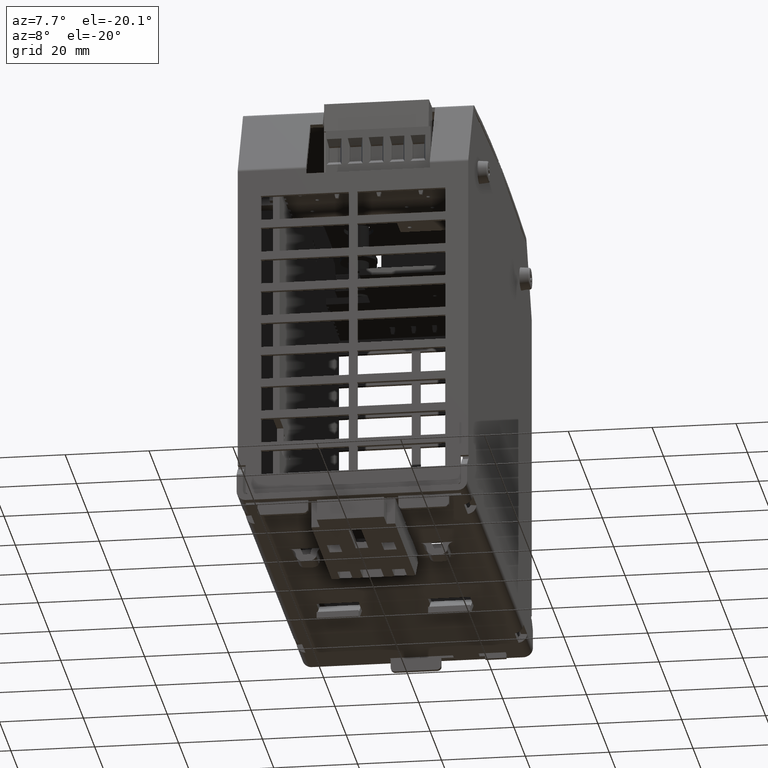
[diagram: clean part render]
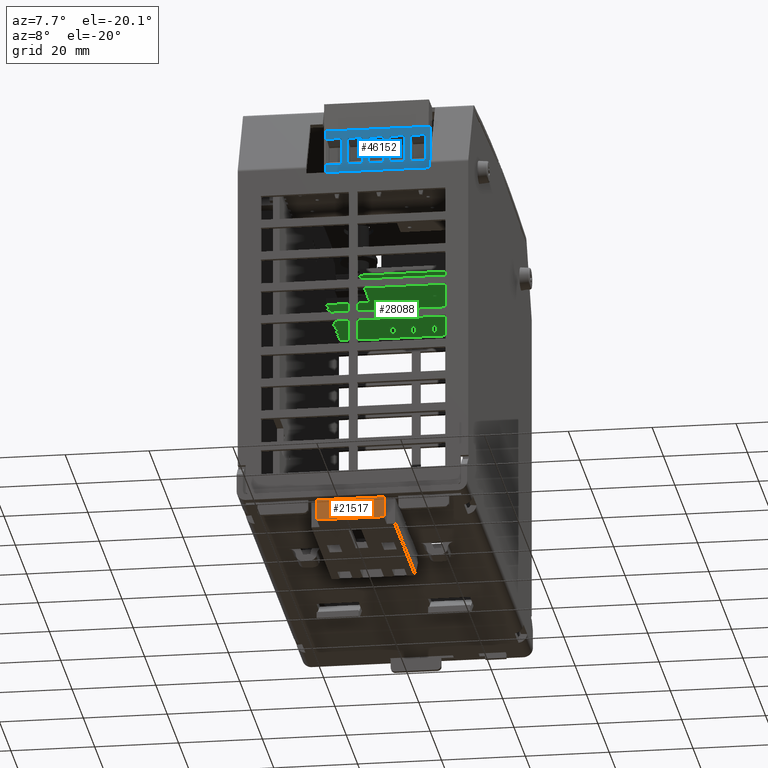
[diagram: same view with three faces highlighted in distinct colors, each labeled with its STEP entity id]
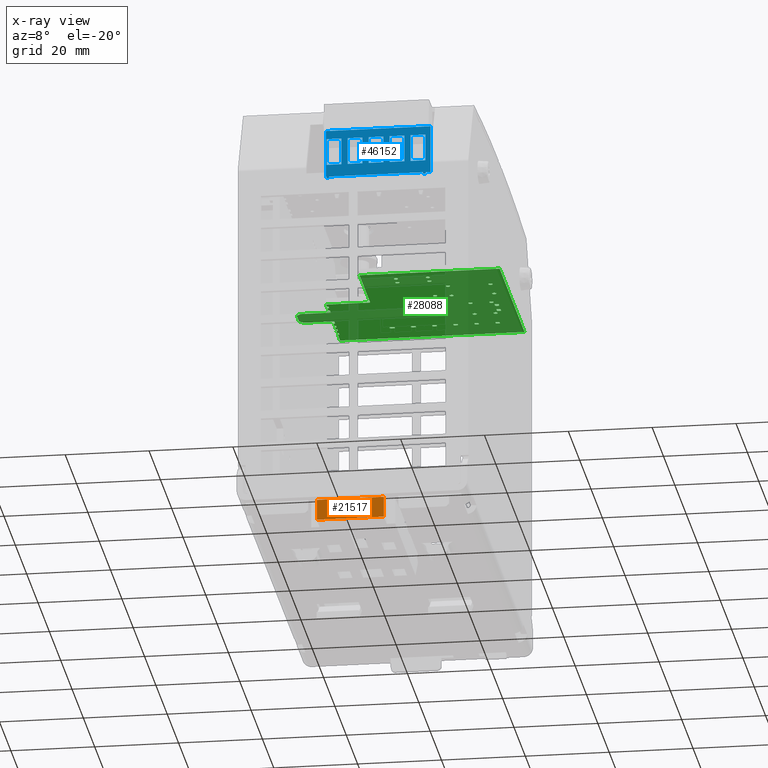
[diagram: x-ray of the same camera — body ghosted, the three highlighted faces saturated]
A machine part, auxiliary view with three faces highlighted in distinct colors.
The next image is the same camera in x-ray (body ghosted, the three faces saturated) — at least one of them is partly hidden behind the body in this view.
Their STEP definitions:

[orange] entity #21517 — the highlighted planar face has unit normal (0, -1, 0).
#21376=CARTESIAN_POINT('',(-0.236220472440945,-2.387795275590551,-0.070866141732281));
#21377=VERTEX_POINT('',#21376);
#21384=CARTESIAN_POINT('',(0.236220472440943,-2.387795275590551,-0.070866141732281));
#21385=VERTEX_POINT('',#21384);
#21386=CARTESIAN_POINT('',(0.236220472440943,-2.387795275590551,-0.070866141732281));
#21387=DIRECTION('',(-1.0,0.0,0.0));
#21388=VECTOR('',#21387,0.472440944881888);
#21389=LINE('',#21386,#21388);
#21390=EDGE_CURVE('',#21385,#21377,#21389,.T.);
#21430=CARTESIAN_POINT('',(-0.314960629921261,-2.387795275590551,-0.070866141732281));
#21431=VERTEX_POINT('',#21430);
#21438=CARTESIAN_POINT('',(-0.236220472440945,-2.387795275590551,-0.070866141732281));
#21439=DIRECTION('',(-1.0,0.0,0.0));
#21440=VECTOR('',#21439,0.078740157480316);
#21441=LINE('',#21438,#21440);
#21442=EDGE_CURVE('',#21377,#21431,#21441,.T.);
#21460=CARTESIAN_POINT('',(0.314960629921259,-2.387795275590551,-0.070866141732281));
#21461=VERTEX_POINT('',#21460);
#21462=CARTESIAN_POINT('',(0.314960629921259,-2.387795275590551,-0.070866141732281));
#21463=DIRECTION('',(-1.0,0.0,0.0));
#21464=VECTOR('',#21463,0.078740157480316);
#21465=LINE('',#21462,#21464);
#21466=EDGE_CURVE('',#21461,#21385,#21465,.T.);
#21485=CARTESIAN_POINT('',(-0.393700787401576,-2.387795275590551,-0.011811023622045));
#21486=DIRECTION('',(0.0,-1.0,0.0));
#21487=DIRECTION('',(0.0,0.0,1.0));
#21488=AXIS2_PLACEMENT_3D('',#21485,#21486,#21487);
#21489=PLANE('',#21488);
#21490=ORIENTED_EDGE('',*,*,#21466,.T.);
#21491=ORIENTED_EDGE('',*,*,#21390,.T.);
#21492=ORIENTED_EDGE('',*,*,#21442,.T.);
#21493=CARTESIAN_POINT('',(-0.314960629921261,-2.387795275590551,-0.267716535433069));
#21494=VERTEX_POINT('',#21493);
#21495=CARTESIAN_POINT('',(-0.314960629921261,-2.387795275590551,-0.070866141732281));
#21496=DIRECTION('',(0.0,0.0,-1.0));
#21497=VECTOR('',#21496,0.196850393700787);
#21498=LINE('',#21495,#21497);
#21499=EDGE_CURVE('',#21431,#21494,#21498,.T.);
#21500=ORIENTED_EDGE('',*,*,#21499,.T.);
#21501=CARTESIAN_POINT('',(0.314960629921259,-2.387795275590551,-0.267716535433069));
#21502=VERTEX_POINT('',#21501);
#21503=CARTESIAN_POINT('',(-0.314960629921261,-2.387795275590551,-0.267716535433069));
#21504=DIRECTION('',(1.0,0.0,0.0));
#21505=VECTOR('',#21504,0.62992125984252);
#21506=LINE('',#21503,#21505);
#21507=EDGE_CURVE('',#21494,#21502,#21506,.T.);
#21508=ORIENTED_EDGE('',*,*,#21507,.T.);
#21509=CARTESIAN_POINT('',(0.314960629921259,-2.387795275590551,-0.267716535433069));
#21510=DIRECTION('',(0.0,0.0,1.0));
#21511=VECTOR('',#21510,0.196850393700787);
#21512=LINE('',#21509,#21511);
#21513=EDGE_CURVE('',#21502,#21461,#21512,.T.);
#21514=ORIENTED_EDGE('',*,*,#21513,.T.);
#21515=EDGE_LOOP('',(#21490,#21491,#21492,#21500,#21508,#21514));
#21516=FACE_OUTER_BOUND('',#21515,.T.);
#21517=ADVANCED_FACE('',(#21516),#21489,.T.);

[blue] entity #46152 — the highlighted planar face has unit normal (0, -1, 0).
#44432=CARTESIAN_POINT('',(-0.275901574803085,-2.058094488188977,3.701204724409452));
#44433=VERTEX_POINT('',#44432);
#44440=CARTESIAN_POINT('',(0.708350393700853,-2.058094488188977,3.701204724409452));
#44441=VERTEX_POINT('',#44440);
#44442=CARTESIAN_POINT('',(-0.275901574803085,-2.058094488188977,3.701204724409452));
#44443=DIRECTION('',(1.0,0.0,0.0));
#44444=VECTOR('',#44443,0.984251968503937);
#44445=LINE('',#44442,#44444);
#44446=EDGE_CURVE('',#44433,#44441,#44445,.T.);
#44711=CARTESIAN_POINT('',(-0.269996062992061,-2.058094488188977,3.24844881889764));
#44712=VERTEX_POINT('',#44711);
#44719=CARTESIAN_POINT('',(-0.275901574803085,-2.058094488188977,3.24844881889764));
#44720=VERTEX_POINT('',#44719);
#44721=CARTESIAN_POINT('',(-0.269996062992061,-2.058094488188977,3.24844881889764));
#44722=DIRECTION('',(-1.0,0.0,0.0));
#44723=VECTOR('',#44722,0.005905511811024);
#44724=LINE('',#44721,#44723);
#44725=EDGE_CURVE('',#44712,#44720,#44724,.T.);
#44756=CARTESIAN_POINT('',(0.637484251968569,-2.058094488188977,3.24844881889764));
#44757=VERTEX_POINT('',#44756);
#44766=CARTESIAN_POINT('',(-0.244405511810959,-2.058094488188977,3.24844881889764));
#44767=VERTEX_POINT('',#44766);
#44768=CARTESIAN_POINT('',(-0.244405511810959,-2.058094488188977,3.24844881889764));
#44769=DIRECTION('',(1.0,0.0,0.0));
#44770=VECTOR('',#44769,0.881889763779528);
#44771=LINE('',#44768,#44770);
#44772=EDGE_CURVE('',#44767,#44757,#44771,.T.);
#44846=CARTESIAN_POINT('',(0.708350393700853,-2.058094488188977,3.24844881889764));
#44847=VERTEX_POINT('',#44846);
#44854=CARTESIAN_POINT('',(0.663074803149672,-2.058094488188977,3.24844881889764));
#44855=VERTEX_POINT('',#44854);
#44856=CARTESIAN_POINT('',(0.663074803149672,-2.058094488188977,3.24844881889764));
#44857=DIRECTION('',(1.0,0.0,0.0));
#44858=VECTOR('',#44857,0.045275590551181);
#44859=LINE('',#44856,#44858);
#44860=EDGE_CURVE('',#44855,#44847,#44859,.T.);
#45909=CARTESIAN_POINT('',(0.708350393700853,-2.058094488188977,3.701204724409452));
#45910=DIRECTION('',(0.0,0.0,-1.0));
#45911=VECTOR('',#45910,0.452755905511811);
#45912=LINE('',#45909,#45911);
#45913=EDGE_CURVE('',#44441,#44847,#45912,.T.);
#45920=CARTESIAN_POINT('',(-0.295586614173163,-2.058094488188977,3.24844881889764));
#45921=DIRECTION('',(0.0,-1.0,0.0));
#45922=DIRECTION('',(1.0,0.0,0.0));
#45923=AXIS2_PLACEMENT_3D('',#45920,#45921,#45922);
#45924=PLANE('',#45923);
#45925=ORIENTED_EDGE('',*,*,#44860,.T.);
#45926=ORIENTED_EDGE('',*,*,#45913,.F.);
#45927=ORIENTED_EDGE('',*,*,#44446,.F.);
#45928=CARTESIAN_POINT('',(-0.275901574803085,-2.058094488188977,3.24844881889764));
#45929=DIRECTION('',(0.0,0.0,1.0));
#45930=VECTOR('',#45929,0.452755905511811);
#45931=LINE('',#45928,#45930);
#45932=EDGE_CURVE('',#44720,#44433,#45931,.T.);
#45933=ORIENTED_EDGE('',*,*,#45932,.F.);
#45934=ORIENTED_EDGE('',*,*,#44725,.F.);
#45935=CARTESIAN_POINT('',(-0.269996062992061,-2.058094488188977,3.232700787401578));
#45936=VERTEX_POINT('',#45935);
#45937=CARTESIAN_POINT('',(-0.269996062992061,-2.058094488188977,3.232700787401578));
#45938=DIRECTION('',(0.0,0.0,1.0));
#45939=VECTOR('',#45938,0.015748031496063);
#45940=LINE('',#45937,#45939);
#45941=EDGE_CURVE('',#45936,#44712,#45940,.T.);
#45942=ORIENTED_EDGE('',*,*,#45941,.F.);
#45943=CARTESIAN_POINT('',(-0.244405511810959,-2.058094488188977,3.232700787401578));
#45944=VERTEX_POINT('',#45943);
#45945=CARTESIAN_POINT('',(-0.244405511810959,-2.058094488188977,3.232700787401578));
#45946=DIRECTION('',(-1.0,0.0,0.0));
#45947=VECTOR('',#45946,0.025590551181102);
#45948=LINE('',#45945,#45947);
#45949=EDGE_CURVE('',#45944,#45936,#45948,.T.);
#45950=ORIENTED_EDGE('',*,*,#45949,.F.);
#45951=CARTESIAN_POINT('',(-0.244405511810959,-2.058094488188977,3.232700787401578));
#45952=DIRECTION('',(0.0,0.0,1.0));
#45953=VECTOR('',#45952,0.015748031496063);
#45954=LINE('',#45951,#45953);
#45955=EDGE_CURVE('',#45944,#44767,#45954,.T.);
#45956=ORIENTED_EDGE('',*,*,#45955,.T.);
#45957=ORIENTED_EDGE('',*,*,#44772,.T.);
#45958=CARTESIAN_POINT('',(0.637484251968569,-2.058094488188977,3.232700787401578));
#45959=VERTEX_POINT('',#45958);
#45960=CARTESIAN_POINT('',(0.637484251968569,-2.058094488188977,3.232700787401578));
#45961=DIRECTION('',(0.0,0.0,1.0));
#45962=VECTOR('',#45961,0.015748031496063);
#45963=LINE('',#45960,#45962);
#45964=EDGE_CURVE('',#45959,#44757,#45963,.T.);
#45965=ORIENTED_EDGE('',*,*,#45964,.F.);
#45966=CARTESIAN_POINT('',(0.663074803149672,-2.058094488188977,3.232700787401578));
#45967=VERTEX_POINT('',#45966);
#45968=CARTESIAN_POINT('',(0.663074803149672,-2.058094488188977,3.232700787401578));
#45969=DIRECTION('',(-1.0,0.0,0.0));
#45970=VECTOR('',#45969,0.025590551181102);
#45971=LINE('',#45968,#45970);
#45972=EDGE_CURVE('',#45967,#45959,#45971,.T.);
#45973=ORIENTED_EDGE('',*,*,#45972,.F.);
#45974=CARTESIAN_POINT('',(0.663074803149672,-2.058094488188977,3.232700787401578));
#45975=DIRECTION('',(0.0,0.0,1.0));
#45976=VECTOR('',#45975,0.015748031496063);
#45977=LINE('',#45974,#45976);
#45978=EDGE_CURVE('',#45967,#44855,#45977,.T.);
#45979=ORIENTED_EDGE('',*,*,#45978,.T.);
#45980=EDGE_LOOP('',(#45925,#45926,#45927,#45933,#45934,#45942,#45950,#45956,#45957,#45965,#45973,#45979));
#45981=FACE_OUTER_BOUND('',#45980,.T.);
#45982=CARTESIAN_POINT('',(-0.266059055118045,-2.058094488188977,3.620844319953231));
#45983=VERTEX_POINT('',#45982);
#45984=CARTESIAN_POINT('',(-0.266059055118045,-2.058094488188977,3.366559055118113));
#45985=VERTEX_POINT('',#45984);
#45986=CARTESIAN_POINT('',(-0.266059055118045,-2.058094488188977,3.620844319953231));
#45987=DIRECTION('',(0.0,0.0,-1.0));
#45988=VECTOR('',#45987,0.254285264835118);
#45989=LINE('',#45986,#45988);
#45990=EDGE_CURVE('',#45983,#45985,#45989,.T.);
#45991=ORIENTED_EDGE('',*,*,#45990,.F.);
#45992=CARTESIAN_POINT('',(-0.128263779527494,-2.058094488188977,3.620844319953231));
#45993=VERTEX_POINT('',#45992);
#45994=CARTESIAN_POINT('',(-0.128263779527494,-2.058094488188977,3.620844319953231));
#45995=DIRECTION('',(-1.0,0.0,0.0));
#45996=VECTOR('',#45995,0.137795275590551);
#45997=LINE('',#45994,#45996);
#45998=EDGE_CURVE('',#45993,#45983,#45997,.T.);
#45999=ORIENTED_EDGE('',*,*,#45998,.F.);
#46000=CARTESIAN_POINT('',(-0.128263779527494,-2.058094488188977,3.366559055118113));
#46001=VERTEX_POINT('',#46000);
#46002=CARTESIAN_POINT('',(-0.128263779527494,-2.058094488188977,3.366559055118113));
#46003=DIRECTION('',(0.0,0.0,1.0));
#46004=VECTOR('',#46003,0.254285264835118);
#46005=LINE('',#46002,#46004);
#46006=EDGE_CURVE('',#46001,#45993,#46005,.T.);
#46007=ORIENTED_EDGE('',*,*,#46006,.F.);
#46008=CARTESIAN_POINT('',(-0.266059055118045,-2.058094488188977,3.366559055118113));
#46009=DIRECTION('',(1.0,0.0,0.0));
#46010=VECTOR('',#46009,0.137795275590551);
#46011=LINE('',#46008,#46010);
#46012=EDGE_CURVE('',#45985,#46001,#46011,.T.);
#46013=ORIENTED_EDGE('',*,*,#46012,.F.);
#46014=EDGE_LOOP('',(#45991,#45999,#46007,#46013));
#46015=FACE_BOUND('',#46014,.T.);
#46016=CARTESIAN_POINT('',(-0.069208661417258,-2.058094488188977,3.620844319953231));
#46017=VERTEX_POINT('',#46016);
#46018=CARTESIAN_POINT('',(-0.069208661417258,-2.058094488188977,3.366559055118113));
#46019=VERTEX_POINT('',#46018);
#46020=CARTESIAN_POINT('',(-0.069208661417258,-2.058094488188977,3.620844319953231));
#46021=DIRECTION('',(0.0,0.0,-1.0));
#46022=VECTOR('',#46021,0.254285264835118);
#46023=LINE('',#46020,#46022);
#46024=EDGE_CURVE('',#46017,#46019,#46023,.T.);
#46025=ORIENTED_EDGE('',*,*,#46024,.F.);
#46026=CARTESIAN_POINT('',(0.068586614173293,-2.058094488188977,3.620844319953231));
#46027=VERTEX_POINT('',#46026);
#46028=CARTESIAN_POINT('',(0.068586614173293,-2.058094488188977,3.620844319953231));
#46029=DIRECTION('',(-1.0,0.0,0.0));
#46030=VECTOR('',#46029,0.137795275590551);
#46031=LINE('',#46028,#46030);
#46032=EDGE_CURVE('',#46027,#46017,#46031,.T.);
#46033=ORIENTED_EDGE('',*,*,#46032,.F.);
#46034=CARTESIAN_POINT('',(0.068586614173293,-2.058094488188977,3.366559055118113));
#46035=VERTEX_POINT('',#46034);
#46036=CARTESIAN_POINT('',(0.068586614173293,-2.058094488188977,3.366559055118113));
#46037=DIRECTION('',(0.0,0.0,1.0));
#46038=VECTOR('',#46037,0.254285264835118);
#46039=LINE('',#46036,#46038);
#46040=EDGE_CURVE('',#46035,#46027,#46039,.T.);
#46041=ORIENTED_EDGE('',*,*,#46040,.F.);
#46042=CARTESIAN_POINT('',(-0.069208661417258,-2.058094488188977,3.366559055118113));
#46043=DIRECTION('',(1.0,0.0,0.0));
#46044=VECTOR('',#46043,0.137795275590551);
#46045=LINE('',#46042,#46044);
#46046=EDGE_CURVE('',#46019,#46035,#46045,.T.);
#46047=ORIENTED_EDGE('',*,*,#46046,.F.);
#46048=EDGE_LOOP('',(#46025,#46033,#46041,#46047));
#46049=FACE_BOUND('',#46048,.T.);
#46050=CARTESIAN_POINT('',(0.127641732283529,-2.058094488188977,3.620844319953231));
#46051=VERTEX_POINT('',#46050);
#46052=CARTESIAN_POINT('',(0.127641732283529,-2.058094488188977,3.366559055118113));
#46053=VERTEX_POINT('',#46052);
#46054=CARTESIAN_POINT('',(0.127641732283529,-2.058094488188977,3.620844319953231));
#46055=DIRECTION('',(0.0,0.0,-1.0));
#46056=VECTOR('',#46055,0.254285264835118);
#46057=LINE('',#46054,#46056);
#46058=EDGE_CURVE('',#46051,#46053,#46057,.T.);
#46059=ORIENTED_EDGE('',*,*,#46058,.F.);
#46060=CARTESIAN_POINT('',(0.265437007874081,-2.058094488188977,3.620844319953231));
#46061=VERTEX_POINT('',#46060);
#46062=CARTESIAN_POINT('',(0.265437007874081,-2.058094488188977,3.620844319953231));
#46063=DIRECTION('',(-1.0,0.0,0.0));
#46064=VECTOR('',#46063,0.137795275590551);
#46065=LINE('',#46062,#46064);
#46066=EDGE_CURVE('',#46061,#46051,#46065,.T.);
#46067=ORIENTED_EDGE('',*,*,#46066,.F.);
#46068=CARTESIAN_POINT('',(0.265437007874081,-2.058094488188977,3.366559055118113));
#46069=VERTEX_POINT('',#46068);
#46070=CARTESIAN_POINT('',(0.265437007874081,-2.058094488188977,3.366559055118113));
#46071=DIRECTION('',(0.0,0.0,1.0));
#46072=VECTOR('',#46071,0.254285264835118);
#46073=LINE('',#46070,#46072);
#46074=EDGE_CURVE('',#46069,#46061,#46073,.T.);
#46075=ORIENTED_EDGE('',*,*,#46074,.F.);
#46076=CARTESIAN_POINT('',(0.127641732283529,-2.058094488188977,3.366559055118113));
#46077=DIRECTION('',(1.0,0.0,0.0));
#46078=VECTOR('',#46077,0.137795275590551);
#46079=LINE('',#46076,#46078);
#46080=EDGE_CURVE('',#46053,#46069,#46079,.T.);
#46081=ORIENTED_EDGE('',*,*,#46080,.F.);
#46082=EDGE_LOOP('',(#46059,#46067,#46075,#46081));
#46083=FACE_BOUND('',#46082,.T.);
#46084=CARTESIAN_POINT('',(0.324492125984317,-2.058094488188977,3.620844319953231));
#46085=VERTEX_POINT('',#46084);
#46086=CARTESIAN_POINT('',(0.324492125984317,-2.058094488188977,3.366559055118113));
#46087=VERTEX_POINT('',#46086);
#46088=CARTESIAN_POINT('',(0.324492125984317,-2.058094488188977,3.620844319953231));
#46089=DIRECTION('',(0.0,0.0,-1.0));
#46090=VECTOR('',#46089,0.254285264835118);
#46091=LINE('',#46088,#46090);
#46092=EDGE_CURVE('',#46085,#46087,#46091,.T.);
#46093=ORIENTED_EDGE('',*,*,#46092,.F.);
#46094=CARTESIAN_POINT('',(0.462287401574868,-2.058094488188977,3.620844319953231));
#46095=VERTEX_POINT('',#46094);
#46096=CARTESIAN_POINT('',(0.462287401574868,-2.058094488188977,3.620844319953231));
#46097=DIRECTION('',(-1.0,0.0,0.0));
#46098=VECTOR('',#46097,0.137795275590551);
#46099=LINE('',#46096,#46098);
#46100=EDGE_CURVE('',#46095,#46085,#46099,.T.);
#46101=ORIENTED_EDGE('',*,*,#46100,.F.);
#46102=CARTESIAN_POINT('',(0.462287401574868,-2.058094488188977,3.366559055118113));
#46103=VERTEX_POINT('',#46102);
#46104=CARTESIAN_POINT('',(0.462287401574868,-2.058094488188977,3.366559055118113));
#46105=DIRECTION('',(0.0,0.0,1.0));
#46106=VECTOR('',#46105,0.254285264835118);
#46107=LINE('',#46104,#46106);
#46108=EDGE_CURVE('',#46103,#46095,#46107,.T.);
#46109=ORIENTED_EDGE('',*,*,#46108,.F.);
#46110=CARTESIAN_POINT('',(0.324492125984317,-2.058094488188977,3.366559055118113));
#46111=DIRECTION('',(1.0,0.0,0.0));
#46112=VECTOR('',#46111,0.137795275590551);
#46113=LINE('',#46110,#46112);
#46114=EDGE_CURVE('',#46087,#46103,#46113,.T.);
#46115=ORIENTED_EDGE('',*,*,#46114,.F.);
#46116=EDGE_LOOP('',(#46093,#46101,#46109,#46115));
#46117=FACE_BOUND('',#46116,.T.);
#46118=CARTESIAN_POINT('',(0.521342519685104,-2.058094488188977,3.620844319953231));
#46119=VERTEX_POINT('',#46118);
#46120=CARTESIAN_POINT('',(0.521342519685104,-2.058094488188977,3.366559055118113));
#46121=VERTEX_POINT('',#46120);
#46122=CARTESIAN_POINT('',(0.521342519685104,-2.058094488188977,3.620844319953231));
#46123=DIRECTION('',(0.0,0.0,-1.0));
#46124=VECTOR('',#46123,0.254285264835118);
#46125=LINE('',#46122,#46124);
#46126=EDGE_CURVE('',#46119,#46121,#46125,.T.);
#46127=ORIENTED_EDGE('',*,*,#46126,.F.);
#46128=CARTESIAN_POINT('',(0.659137795275656,-2.058094488188977,3.620844319953231));
#46129=VERTEX_POINT('',#46128);
#46130=CARTESIAN_POINT('',(0.659137795275656,-2.058094488188977,3.620844319953231));
#46131=DIRECTION('',(-1.0,0.0,0.0));
#46132=VECTOR('',#46131,0.137795275590551);
#46133=LINE('',#46130,#46132);
#46134=EDGE_CURVE('',#46129,#46119,#46133,.T.);
#46135=ORIENTED_EDGE('',*,*,#46134,.F.);
#46136=CARTESIAN_POINT('',(0.659137795275656,-2.058094488188977,3.366559055118113));
#46137=VERTEX_POINT('',#46136);
#46138=CARTESIAN_POINT('',(0.659137795275656,-2.058094488188977,3.366559055118113));
#46139=DIRECTION('',(0.0,0.0,1.0));
#46140=VECTOR('',#46139,0.254285264835118);
#46141=LINE('',#46138,#46140);
#46142=EDGE_CURVE('',#46137,#46129,#46141,.T.);
#46143=ORIENTED_EDGE('',*,*,#46142,.F.);
#46144=CARTESIAN_POINT('',(0.521342519685104,-2.058094488188977,3.366559055118113));
#46145=DIRECTION('',(1.0,0.0,0.0));
#46146=VECTOR('',#46145,0.137795275590551);
#46147=LINE('',#46144,#46146);
#46148=EDGE_CURVE('',#46121,#46137,#46147,.T.);
#46149=ORIENTED_EDGE('',*,*,#46148,.F.);
#46150=EDGE_LOOP('',(#46127,#46135,#46143,#46149));
#46151=FACE_BOUND('',#46150,.T.);
#46152=ADVANCED_FACE('',(#45981,#46015,#46049,#46083,#46117,#46151),#45924,.T.);

[green] entity #28088 — the highlighted planar face has unit normal (0, 0, 1).
#25527=CARTESIAN_POINT('',(0.885543307086679,1.50557886499046,3.169708661417326));
#25528=VERTEX_POINT('',#25527);
#25529=CARTESIAN_POINT('',(0.885543307086679,1.544948943730618,3.169708661417326));
#25530=VERTEX_POINT('',#25529);
#25531=CARTESIAN_POINT('',(0.885543307086679,1.50557886499046,3.169708661417326));
#25532=DIRECTION('',(0.0,1.0,0.0));
#25533=VECTOR('',#25532,0.039370078740157);
#25534=LINE('',#25531,#25533);
#25535=EDGE_CURVE('',#25528,#25530,#25534,.T.);
#25586=CARTESIAN_POINT('',(0.884717067642148,1.50557886499046,3.169708661417326));
#25587=VERTEX_POINT('',#25586);
#25588=CARTESIAN_POINT('',(0.884717067642148,1.50557886499046,3.169708661417326));
#25589=DIRECTION('',(1.0,0.0,0.0));
#25590=VECTOR('',#25589,0.000826239444531);
#25591=LINE('',#25588,#25590);
#25592=EDGE_CURVE('',#25587,#25528,#25591,.T.);
#25678=CARTESIAN_POINT('',(0.846173228346522,1.544948943730618,3.169708661417326));
#25679=VERTEX_POINT('',#25678);
#25680=CARTESIAN_POINT('',(0.885543307086679,1.544948943730618,3.169708661417326));
#25681=DIRECTION('',(-1.0,0.0,0.0));
#25682=VECTOR('',#25681,0.039370078740158);
#25683=LINE('',#25680,#25682);
#25684=EDGE_CURVE('',#25530,#25679,#25683,.T.);
#25710=CARTESIAN_POINT('',(0.846173228346521,1.513532694947912,3.169708661417326));
#25711=VERTEX_POINT('',#25710);
#25720=CARTESIAN_POINT('',(0.846173228346521,1.544948943730618,3.169708661417326));
#25721=DIRECTION('',(0.0,-1.0,0.0));
#25722=VECTOR('',#25721,0.031416248782706);
#25723=LINE('',#25720,#25722);
#25724=EDGE_CURVE('',#25679,#25711,#25723,.T.);
#25773=CARTESIAN_POINT('',(0.846173228346521,1.386546045209567,3.169708661417326));
#25774=VERTEX_POINT('',#25773);
#25775=CARTESIAN_POINT('',(0.846173228346522,1.355019560206388,3.169708661417326));
#25776=VERTEX_POINT('',#25775);
#25777=CARTESIAN_POINT('',(0.846173228346521,1.386546045209567,3.169708661417326));
#25778=DIRECTION('',(0.0,-1.0,0.0));
#25779=VECTOR('',#25778,0.031526485003179);
#25780=LINE('',#25777,#25779);
#25781=EDGE_CURVE('',#25774,#25776,#25780,.T.);
#26395=CARTESIAN_POINT('',(0.885543307086679,1.394389638946545,3.169708661417326));
#26396=VERTEX_POINT('',#26395);
#26397=CARTESIAN_POINT('',(0.884736429813317,1.394389638946545,3.169708661417326));
#26398=VERTEX_POINT('',#26397);
#26399=CARTESIAN_POINT('',(0.885543307086679,1.394389638946545,3.169708661417326));
#26400=DIRECTION('',(-1.0,0.0,0.0));
#26401=VECTOR('',#26400,0.000806877273363);
#26402=LINE('',#26399,#26401);
#26403=EDGE_CURVE('',#26396,#26398,#26402,.T.);
#26499=CARTESIAN_POINT('',(0.885543307086679,1.355019560206388,3.169708661417326));
#26500=VERTEX_POINT('',#26499);
#26501=CARTESIAN_POINT('',(0.846173228346522,1.355019560206388,3.169708661417326));
#26502=DIRECTION('',(1.0,0.0,0.0));
#26503=VECTOR('',#26502,0.039370078740158);
#26504=LINE('',#26501,#26503);
#26505=EDGE_CURVE('',#25776,#26500,#26504,.T.);
#26602=CARTESIAN_POINT('',(0.885543307086679,1.355019560206388,3.169708661417326));
#26603=DIRECTION('',(0.0,1.0,0.0));
#26604=VECTOR('',#26603,0.039370078740157);
#26605=LINE('',#26602,#26604);
#26606=EDGE_CURVE('',#26500,#26396,#26605,.T.);
#27244=CARTESIAN_POINT('',(0.002310789090264,1.372964567165214,3.169708661417326));
#27245=DIRECTION('',(0.0,0.0,1.0));
#27246=DIRECTION('',(1.0,0.0,0.0));
#27247=AXIS2_PLACEMENT_3D('',#27244,#27245,#27246);
#27248=PLANE('',#27247);
#27249=CARTESIAN_POINT('',(-0.70866141732277,1.942039370078739,3.169708661417326));
#27250=VERTEX_POINT('',#27249);
#27251=CARTESIAN_POINT('',(-0.70866141732277,1.87903937007874,3.169708661417326));
#27252=VERTEX_POINT('',#27251);
#27253=CARTESIAN_POINT('',(-0.70866141732277,1.942039370078739,3.169708661417326));
#27254=DIRECTION('',(0.0,-1.0,0.0));
#27255=VECTOR('',#27254,0.062999999999999);
#27256=LINE('',#27253,#27255);
#27257=EDGE_CURVE('',#27250,#27252,#27256,.T.);
#27258=ORIENTED_EDGE('',*,*,#27257,.F.);
#27259=CARTESIAN_POINT('',(-0.69366141732277,1.942039370078739,3.169708661417326));
#27260=VERTEX_POINT('',#27259);
#27261=CARTESIAN_POINT('',(-0.69366141732277,1.942039370078739,3.169708661417326));
#27262=DIRECTION('',(-1.0,0.0,0.0));
#27263=VECTOR('',#27262,0.015);
#27264=LINE('',#27261,#27263);
#27265=EDGE_CURVE('',#27260,#27250,#27264,.T.);
#27266=ORIENTED_EDGE('',*,*,#27265,.F.);
#27267=CARTESIAN_POINT('',(-0.69366141732277,1.980039370078739,3.169708661417326));
#27268=VERTEX_POINT('',#27267);
#27269=CARTESIAN_POINT('',(-0.69366141732277,1.980039370078739,3.169708661417326));
#27270=DIRECTION('',(0.0,-1.0,0.0));
#27271=VECTOR('',#27270,0.038);
#27272=LINE('',#27269,#27271);
#27273=EDGE_CURVE('',#27268,#27260,#27272,.T.);
#27274=ORIENTED_EDGE('',*,*,#27273,.F.);
#27275=CARTESIAN_POINT('',(-0.70866141732277,1.980039370078739,3.169708661417326));
#27276=VERTEX_POINT('',#27275);
#27277=CARTESIAN_POINT('',(-0.70866141732277,1.980039370078739,3.169708661417326));
#27278=DIRECTION('',(1.0,0.0,0.0));
#27279=VECTOR('',#27278,0.015);
#27280=LINE('',#27277,#27279);
#27281=EDGE_CURVE('',#27276,#27268,#27280,.T.);
#27282=ORIENTED_EDGE('',*,*,#27281,.F.);
#27283=CARTESIAN_POINT('',(-0.70866141732277,2.058897637795275,3.169708661417326));
#27284=VERTEX_POINT('',#27283);
#27285=CARTESIAN_POINT('',(-0.70866141732277,2.058897637795275,3.169708661417326));
#27286=DIRECTION('',(0.0,-1.0,0.0));
#27287=VECTOR('',#27286,0.078858267716536);
#27288=LINE('',#27285,#27287);
#27289=EDGE_CURVE('',#27284,#27276,#27288,.T.);
#27290=ORIENTED_EDGE('',*,*,#27289,.F.);
#27291=CARTESIAN_POINT('',(-0.70866141732277,2.143039370078739,3.169708661417326));
#27292=VERTEX_POINT('',#27291);
#27293=CARTESIAN_POINT('',(-0.70866141732277,2.143039370078739,3.169708661417326));
#27294=DIRECTION('',(0.0,-1.0,0.0));
#27295=VECTOR('',#27294,0.084141732283464);
#27296=LINE('',#27293,#27295);
#27297=EDGE_CURVE('',#27292,#27284,#27296,.T.);
#27298=ORIENTED_EDGE('',*,*,#27297,.F.);
#27299=CARTESIAN_POINT('',(1.02333858267723,2.143039370078739,3.169708661417326));
#27300=VERTEX_POINT('',#27299);
#27301=CARTESIAN_POINT('',(1.02333858267723,2.143039370078739,3.169708661417326));
#27302=DIRECTION('',(-1.0,0.0,0.0));
#27303=VECTOR('',#27302,1.732);
#27304=LINE('',#27301,#27303);
#27305=EDGE_CURVE('',#27300,#27292,#27304,.T.);
#27306=ORIENTED_EDGE('',*,*,#27305,.F.);
#27307=CARTESIAN_POINT('',(1.02333858267723,0.413039370078739,3.169708661417326));
#27308=VERTEX_POINT('',#27307);
#27309=CARTESIAN_POINT('',(1.02333858267723,0.413039370078739,3.169708661417326));
#27310=DIRECTION('',(0.0,1.0,0.0));
#27311=VECTOR('',#27310,1.73);
#27312=LINE('',#27309,#27311);
#27313=EDGE_CURVE('',#27308,#27300,#27312,.T.);
#27314=ORIENTED_EDGE('',*,*,#27313,.F.);
#27315=CARTESIAN_POINT('',(-0.29366141732277,0.413039370078739,3.169708661417326));
#27316=VERTEX_POINT('',#27315);
#27317=CARTESIAN_POINT('',(-0.29366141732277,0.413039370078739,3.169708661417326));
#27318=DIRECTION('',(1.0,0.0,0.0));
#27319=VECTOR('',#27318,1.317);
#27320=LINE('',#27317,#27319);
#27321=EDGE_CURVE('',#27316,#27308,#27320,.T.);
#27322=ORIENTED_EDGE('',*,*,#27321,.F.);
#27323=CARTESIAN_POINT('',(-0.29366141732277,1.159039370078739,3.169708661417326));
#27324=VERTEX_POINT('',#27323);
#27325=CARTESIAN_POINT('',(-0.29366141732277,1.159039370078739,3.169708661417326));
#27326=DIRECTION('',(0.0,-1.0,0.0));
#27327=VECTOR('',#27326,0.746);
#27328=LINE('',#27325,#27327);
#27329=EDGE_CURVE('',#27324,#27316,#27328,.T.);
#27330=ORIENTED_EDGE('',*,*,#27329,.F.);
#27331=CARTESIAN_POINT('',(-0.70866141732277,1.159039370078739,3.169708661417326));
#27332=VERTEX_POINT('',#27331);
#27333=CARTESIAN_POINT('',(-0.70866141732277,1.159039370078739,3.169708661417326));
#27334=DIRECTION('',(1.0,0.0,0.0));
#27335=VECTOR('',#27334,0.415);
#27336=LINE('',#27333,#27335);
#27337=EDGE_CURVE('',#27332,#27324,#27336,.T.);
#27338=ORIENTED_EDGE('',*,*,#27337,.F.);
#27339=CARTESIAN_POINT('',(-0.70866141732277,1.219039370078739,3.169708661417326));
#27340=VERTEX_POINT('',#27339);
#27341=CARTESIAN_POINT('',(-0.70866141732277,1.21903937007874,3.169708661417326));
#27342=DIRECTION('',(0.0,-1.0,0.0));
#27343=VECTOR('',#27342,0.06);
#27344=LINE('',#27341,#27343);
#27345=EDGE_CURVE('',#27340,#27332,#27344,.T.);
#27346=ORIENTED_EDGE('',*,*,#27345,.F.);
#27347=CARTESIAN_POINT('',(-0.69366141732277,1.219039370078739,3.169708661417326));
#27348=VERTEX_POINT('',#27347);
#27349=CARTESIAN_POINT('',(-0.69366141732277,1.219039370078739,3.169708661417326));
#27350=DIRECTION('',(-1.0,0.0,0.0));
#27351=VECTOR('',#27350,0.015);
#27352=LINE('',#27349,#27351);
#27353=EDGE_CURVE('',#27348,#27340,#27352,.T.);
#27354=ORIENTED_EDGE('',*,*,#27353,.F.);
#27355=CARTESIAN_POINT('',(-0.69366141732277,1.25903937007874,3.169708661417326));
#27356=VERTEX_POINT('',#27355);
#27357=CARTESIAN_POINT('',(-0.69366141732277,1.25903937007874,3.169708661417326));
#27358=DIRECTION('',(0.0,-1.0,0.0));
#27359=VECTOR('',#27358,0.04);
#27360=LINE('',#27357,#27359);
#27361=EDGE_CURVE('',#27356,#27348,#27360,.T.);
#27362=ORIENTED_EDGE('',*,*,#27361,.F.);
#27363=CARTESIAN_POINT('',(-0.70866141732277,1.25903937007874,3.169708661417326));
#27364=VERTEX_POINT('',#27363);
#27365=CARTESIAN_POINT('',(-0.70866141732277,1.25903937007874,3.169708661417326));
#27366=DIRECTION('',(1.0,0.0,0.0));
#27367=VECTOR('',#27366,0.015);
#27368=LINE('',#27365,#27367);
#27369=EDGE_CURVE('',#27364,#27356,#27368,.T.);
#27370=ORIENTED_EDGE('',*,*,#27369,.F.);
#27371=CARTESIAN_POINT('',(-0.70866141732277,1.322039370078739,3.169708661417326));
#27372=VERTEX_POINT('',#27371);
#27373=CARTESIAN_POINT('',(-0.70866141732277,1.322039370078739,3.169708661417326));
#27374=DIRECTION('',(0.0,-1.0,0.0));
#27375=VECTOR('',#27374,0.063);
#27376=LINE('',#27373,#27375);
#27377=EDGE_CURVE('',#27372,#27364,#27376,.T.);
#27378=ORIENTED_EDGE('',*,*,#27377,.F.);
#27379=CARTESIAN_POINT('',(-0.69366141732277,1.322039370078739,3.169708661417326));
#27380=VERTEX_POINT('',#27379);
#27381=CARTESIAN_POINT('',(-0.69366141732277,1.322039370078739,3.169708661417326));
#27382=DIRECTION('',(-1.0,0.0,0.0));
#27383=VECTOR('',#27382,0.015);
#27384=LINE('',#27381,#27383);
#27385=EDGE_CURVE('',#27380,#27372,#27384,.T.);
#27386=ORIENTED_EDGE('',*,*,#27385,.F.);
#27387=CARTESIAN_POINT('',(-0.69366141732277,1.382039370078739,3.169708661417326));
#27388=VERTEX_POINT('',#27387);
#27389=CARTESIAN_POINT('',(-0.69366141732277,1.382039370078739,3.169708661417326));
#27390=DIRECTION('',(0.0,-1.0,0.0));
#27391=VECTOR('',#27390,0.06);
#27392=LINE('',#27389,#27391);
#27393=EDGE_CURVE('',#27388,#27380,#27392,.T.);
#27394=ORIENTED_EDGE('',*,*,#27393,.F.);
#27395=CARTESIAN_POINT('',(-0.97866141732277,1.382039370078739,3.169708661417326));
#27396=VERTEX_POINT('',#27395);
#27397=CARTESIAN_POINT('',(-0.97866141732277,1.382039370078739,3.169708661417326));
#27398=DIRECTION('',(1.0,0.0,0.0));
#27399=VECTOR('',#27398,0.285);
#27400=LINE('',#27397,#27399);
#27401=EDGE_CURVE('',#27396,#27388,#27400,.T.);
#27402=ORIENTED_EDGE('',*,*,#27401,.F.);
#27403=CARTESIAN_POINT('',(-1.01866141732277,1.42203937007874,3.169708661417326));
#27404=VERTEX_POINT('',#27403);
#27405=CARTESIAN_POINT('',(-1.01866141732277,1.42203937007874,3.169708661417326));
#27406=DIRECTION('',(0.707106781186548,-0.707106781186548,0.0));
#27407=VECTOR('',#27406,0.056568542494924);
#27408=LINE('',#27405,#27407);
#27409=EDGE_CURVE('',#27404,#27396,#27408,.T.);
#27410=ORIENTED_EDGE('',*,*,#27409,.F.);
#27411=CARTESIAN_POINT('',(-1.01866141732277,1.580039370078739,3.169708661417326));
#27412=VERTEX_POINT('',#27411);
#27413=CARTESIAN_POINT('',(-1.01866141732277,1.580039370078739,3.169708661417326));
#27414=DIRECTION('',(0.0,-1.0,0.0));
#27415=VECTOR('',#27414,0.158);
#27416=LINE('',#27413,#27415);
#27417=EDGE_CURVE('',#27412,#27404,#27416,.T.);
#27418=ORIENTED_EDGE('',*,*,#27417,.F.);
#27419=CARTESIAN_POINT('',(-0.97866141732277,1.620039370078739,3.169708661417326));
#27420=VERTEX_POINT('',#27419);
#27421=CARTESIAN_POINT('',(-0.97866141732277,1.620039370078739,3.169708661417326));
#27422=DIRECTION('',(-0.707106781186553,-0.707106781186542,0.0));
#27423=VECTOR('',#27422,0.056568542494923);
#27424=LINE('',#27421,#27423);
#27425=EDGE_CURVE('',#27420,#27412,#27424,.T.);
#27426=ORIENTED_EDGE('',*,*,#27425,.F.);
#27427=CARTESIAN_POINT('',(-0.69366141732277,1.620039370078739,3.169708661417326));
#27428=VERTEX_POINT('',#27427);
#27429=CARTESIAN_POINT('',(-0.69366141732277,1.620039370078739,3.169708661417326));
#27430=DIRECTION('',(-1.0,0.0,0.0));
#27431=VECTOR('',#27430,0.285);
#27432=LINE('',#27429,#27431);
#27433=EDGE_CURVE('',#27428,#27420,#27432,.T.);
#27434=ORIENTED_EDGE('',*,*,#27433,.F.);
#27435=CARTESIAN_POINT('',(-0.69366141732277,1.67903937007874,3.169708661417326));
#27436=VERTEX_POINT('',#27435);
#27437=CARTESIAN_POINT('',(-0.69366141732277,1.67903937007874,3.169708661417326));
#27438=DIRECTION('',(0.0,-1.0,0.0));
#27439=VECTOR('',#27438,0.059000000000001);
#27440=LINE('',#27437,#27439);
#27441=EDGE_CURVE('',#27436,#27428,#27440,.T.);
#27442=ORIENTED_EDGE('',*,*,#27441,.F.);
#27443=CARTESIAN_POINT('',(-0.70866141732277,1.67903937007874,3.169708661417326));
#27444=VERTEX_POINT('',#27443);
#27445=CARTESIAN_POINT('',(-0.70866141732277,1.67903937007874,3.169708661417326));
#27446=DIRECTION('',(1.0,0.0,0.0));
#27447=VECTOR('',#27446,0.015);
#27448=LINE('',#27445,#27447);
#27449=EDGE_CURVE('',#27444,#27436,#27448,.T.);
#27450=ORIENTED_EDGE('',*,*,#27449,.F.);
#27451=CARTESIAN_POINT('',(-0.70866141732277,1.74203937007874,3.169708661417326));
#27452=VERTEX_POINT('',#27451);
#27453=CARTESIAN_POINT('',(-0.70866141732277,1.74203937007874,3.169708661417326));
#27454=DIRECTION('',(0.0,-1.0,0.0));
#27455=VECTOR('',#27454,0.063);
#27456=LINE('',#27453,#27455);
#27457=EDGE_CURVE('',#27452,#27444,#27456,.T.);
#27458=ORIENTED_EDGE('',*,*,#27457,.F.);
#27459=CARTESIAN_POINT('',(-0.69366141732277,1.74203937007874,3.169708661417326));
#27460=VERTEX_POINT('',#27459);
#27461=CARTESIAN_POINT('',(-0.69366141732277,1.74203937007874,3.169708661417326));
#27462=DIRECTION('',(-1.0,0.0,0.0));
#27463=VECTOR('',#27462,0.015);
#27464=LINE('',#27461,#27463);
#27465=EDGE_CURVE('',#27460,#27452,#27464,.T.);
#27466=ORIENTED_EDGE('',*,*,#27465,.F.);
#27467=CARTESIAN_POINT('',(-0.69366141732277,1.783039370078739,3.169708661417326));
#27468=VERTEX_POINT('',#27467);
#27469=CARTESIAN_POINT('',(-0.69366141732277,1.783039370078739,3.169708661417326));
#27470=DIRECTION('',(0.0,-1.0,0.0));
#27471=VECTOR('',#27470,0.040999999999999);
#27472=LINE('',#27469,#27471);
#27473=EDGE_CURVE('',#27468,#27460,#27472,.T.);
#27474=ORIENTED_EDGE('',*,*,#27473,.F.);
#27475=CARTESIAN_POINT('',(-0.70866141732277,1.783039370078739,3.169708661417326));
#27476=VERTEX_POINT('',#27475);
#27477=CARTESIAN_POINT('',(-0.70866141732277,1.783039370078739,3.169708661417326));
#27478=DIRECTION('',(1.0,0.0,0.0));
#27479=VECTOR('',#27478,0.015);
#27480=LINE('',#27477,#27479);
#27481=EDGE_CURVE('',#27476,#27468,#27480,.T.);
#27482=ORIENTED_EDGE('',*,*,#27481,.F.);
#27483=CARTESIAN_POINT('',(-0.70866141732277,1.838039370078739,3.169708661417326));
#27484=VERTEX_POINT('',#27483);
#27485=CARTESIAN_POINT('',(-0.70866141732277,1.838039370078739,3.169708661417326));
#27486=DIRECTION('',(0.0,-1.0,0.0));
#27487=VECTOR('',#27486,0.055);
#27488=LINE('',#27485,#27487);
#27489=EDGE_CURVE('',#27484,#27476,#27488,.T.);
#27490=ORIENTED_EDGE('',*,*,#27489,.F.);
#27491=CARTESIAN_POINT('',(-0.69366141732277,1.838039370078739,3.169708661417326));
#27492=VERTEX_POINT('',#27491);
#27493=CARTESIAN_POINT('',(-0.69366141732277,1.838039370078739,3.169708661417326));
#27494=DIRECTION('',(-1.0,0.0,0.0));
#27495=VECTOR('',#27494,0.015);
#27496=LINE('',#27493,#27495);
#27497=EDGE_CURVE('',#27492,#27484,#27496,.T.);
#27498=ORIENTED_EDGE('',*,*,#27497,.F.);
#27499=CARTESIAN_POINT('',(-0.69366141732277,1.87903937007874,3.169708661417326));
#27500=VERTEX_POINT('',#27499);
#27501=CARTESIAN_POINT('',(-0.69366141732277,1.87903937007874,3.169708661417326));
#27502=DIRECTION('',(0.0,-1.0,0.0));
#27503=VECTOR('',#27502,0.041);
#27504=LINE('',#27501,#27503);
#27505=EDGE_CURVE('',#27500,#27492,#27504,.T.);
#27506=ORIENTED_EDGE('',*,*,#27505,.F.);
#27507=CARTESIAN_POINT('',(-0.70866141732277,1.87903937007874,3.169708661417326));
#27508=DIRECTION('',(1.0,0.0,0.0));
#27509=VECTOR('',#27508,0.015);
#27510=LINE('',#27507,#27509);
#27511=EDGE_CURVE('',#27252,#27500,#27510,.T.);
#27512=ORIENTED_EDGE('',*,*,#27511,.F.);
#27513=EDGE_LOOP('',(#27258,#27266,#27274,#27282,#27290,#27298,#27306,#27314,#27322,#27330,#27338,#27346,#27354,#27362,#27370,#27378,#27386,#27394,#27402,#27410,#27418,#27426,#27434,#27442,#27450,#27458,#27466,#27474,#27482,#27490,#27498,#27506,#27512));
#27514=FACE_OUTER_BOUND('',#27513,.T.);
#27515=CARTESIAN_POINT('',(0.820149606299277,1.845291338582676,3.169708661417326));
#27516=VERTEX_POINT('',#27515);
#27517=CARTESIAN_POINT('',(0.828023622047308,1.845291338582676,3.169708661417326));
#27518=VERTEX_POINT('',#27517);
#27519=CARTESIAN_POINT('',(0.820149606299277,1.845291338582676,3.169708661417326));
#27520=DIRECTION('',(1.0,0.0,0.0));
#27521=VECTOR('',#27520,0.007874015748031);
#27522=LINE('',#27519,#27521);
#27523=EDGE_CURVE('',#27516,#27518,#27522,.T.);
#27524=ORIENTED_EDGE('',*,*,#27523,.T.);
#27525=CARTESIAN_POINT('',(0.828023622047308,1.876787401574802,3.169708661417326));
#27526=VERTEX_POINT('',#27525);
#27527=CARTESIAN_POINT('',(0.828023622047308,1.845291338582676,3.169708661417326));
#27528=DIRECTION('',(0.0,1.0,0.0));
#27529=VECTOR('',#27528,0.031496062992126);
#27530=LINE('',#27527,#27529);
#27531=EDGE_CURVE('',#27518,#27526,#27530,.T.);
#27532=ORIENTED_EDGE('',*,*,#27531,.T.);
#27533=CARTESIAN_POINT('',(0.820149606299279,1.876787401574802,3.169708661417326));
#27534=VERTEX_POINT('',#27533);
#27535=CARTESIAN_POINT('',(0.828023622047308,1.876787401574802,3.169708661417326));
#27536=DIRECTION('',(-1.0,0.0,0.0));
#27537=VECTOR('',#27536,0.007874015748029);
#27538=LINE('',#27535,#27537);
#27539=EDGE_CURVE('',#27526,#27534,#27538,.T.);
#27540=ORIENTED_EDGE('',*,*,#27539,.T.);
#27541=CARTESIAN_POINT('',(0.796527559055182,1.876787401574802,3.169708661417326));
#27542=VERTEX_POINT('',#27541);
#27543=CARTESIAN_POINT('',(0.80833858267723,1.86103937007874,3.169708661417326));
#27544=DIRECTION('',(0.0,0.0,1.0));
#27545=DIRECTION('',(1.0,0.0,0.0));
#27546=AXIS2_PLACEMENT_3D('',#27543,#27544,#27545);
#27547=CIRCLE('',#27546,0.019685039370079);
#27548=EDGE_CURVE('',#27534,#27542,#27547,.T.);
#27549=ORIENTED_EDGE('',*,*,#27548,.T.);
#27550=CARTESIAN_POINT('',(0.78865354330715,1.876787401574802,3.169708661417326));
#27551=VERTEX_POINT('',#27550);
#27552=CARTESIAN_POINT('',(0.796527559055182,1.876787401574802,3.169708661417326));
#27553=DIRECTION('',(-1.0,0.0,0.0));
#27554=VECTOR('',#27553,0.007874015748032);
#27555=LINE('',#27552,#27554);
#27556=EDGE_CURVE('',#27542,#27551,#27555,.T.);
#27557=ORIENTED_EDGE('',*,*,#27556,.T.);
#27558=CARTESIAN_POINT('',(0.78865354330715,1.845291338582676,3.169708661417326));
#27559=VERTEX_POINT('',#27558);
#27560=CARTESIAN_POINT('',(0.78865354330715,1.876787401574802,3.169708661417326));
#27561=DIRECTION('',(0.0,-1.0,0.0));
#27562=VECTOR('',#27561,0.031496062992126);
#27563=LINE('',#27560,#27562);
#27564=EDGE_CURVE('',#27551,#27559,#27563,.T.);
#27565=ORIENTED_EDGE('',*,*,#27564,.T.);
#27566=CARTESIAN_POINT('',(0.796527559055184,1.845291338582676,3.169708661417326));
#27567=VERTEX_POINT('',#27566);
#27568=CARTESIAN_POINT('',(0.78865354330715,1.845291338582676,3.169708661417326));
#27569=DIRECTION('',(1.0,0.0,0.0));
#27570=VECTOR('',#27569,0.007874015748034);
#27571=LINE('',#27568,#27570);
#27572=EDGE_CURVE('',#27559,#27567,#27571,.T.);
#27573=ORIENTED_EDGE('',*,*,#27572,.T.);
#27574=CARTESIAN_POINT('',(0.80833858267723,1.86103937007874,3.169708661417326));
#27575=DIRECTION('',(0.0,0.0,1.0));
#27576=DIRECTION('',(1.0,0.0,0.0));
#27577=AXIS2_PLACEMENT_3D('',#27574,#27575,#27576);
#27578=CIRCLE('',#27577,0.019685039370079);
#27579=EDGE_CURVE('',#27567,#27516,#27578,.T.);
#27580=ORIENTED_EDGE('',*,*,#27579,.T.);
#27581=EDGE_LOOP('',(#27524,#27532,#27540,#27549,#27557,#27565,#27573,#27580));
#27582=FACE_BOUND('',#27581,.T.);
#27583=CARTESIAN_POINT('',(0.631173228346521,1.876787401574802,3.169708661417326));
#27584=VERTEX_POINT('',#27583);
#27585=CARTESIAN_POINT('',(0.623149606299279,1.876787401574802,3.169708661417326));
#27586=VERTEX_POINT('',#27585);
#27587=CARTESIAN_POINT('',(0.631173228346521,1.876787401574802,3.169708661417326));
#27588=DIRECTION('',(-1.0,0.0,0.0));
#27589=VECTOR('',#27588,0.008023622047242);
#27590=LINE('',#27587,#27589);
#27591=EDGE_CURVE('',#27584,#27586,#27590,.T.);
#27592=ORIENTED_EDGE('',*,*,#27591,.T.);
#27593=CARTESIAN_POINT('',(0.599527559055182,1.876787401574802,3.169708661417326));
#27594=VERTEX_POINT('',#27593);
#27595=CARTESIAN_POINT('',(0.61133858267723,1.86103937007874,3.169708661417326));
#27596=DIRECTION('',(0.0,0.0,1.0));
#27597=DIRECTION('',(1.0,0.0,0.0));
#27598=AXIS2_PLACEMENT_3D('',#27595,#27596,#27597);
#27599=CIRCLE('',#27598,0.019685039370079);
#27600=EDGE_CURVE('',#27586,#27594,#27599,.T.);
#27601=ORIENTED_EDGE('',*,*,#27600,.T.);
#27602=CARTESIAN_POINT('',(0.591803149606363,1.876787401574802,3.169708661417326));
#27603=VERTEX_POINT('',#27602);
#27604=CARTESIAN_POINT('',(0.599527559055182,1.876787401574802,3.169708661417326));
#27605=DIRECTION('',(-1.0,0.0,0.0));
#27606=VECTOR('',#27605,0.007724409448819);
#27607=LINE('',#27604,#27606);
#27608=EDGE_CURVE('',#27594,#27603,#27607,.T.);
#27609=ORIENTED_EDGE('',*,*,#27608,.T.);
#27610=CARTESIAN_POINT('',(0.591803149606363,1.86346168916078,3.169708661417326));
#27611=VERTEX_POINT('',#27610);
#27612=CARTESIAN_POINT('',(0.591803149606363,1.876787401574802,3.169708661417326));
#27613=DIRECTION('',(0.0,-1.0,0.0));
#27614=VECTOR('',#27613,0.013325712414022);
#27615=LINE('',#27612,#27614);
#27616=EDGE_CURVE('',#27603,#27611,#27615,.T.);
#27617=ORIENTED_EDGE('',*,*,#27616,.T.);
#27618=CARTESIAN_POINT('',(0.591803149606363,1.8586170509967,3.169708661417326));
#27619=VERTEX_POINT('',#27618);
#27620=CARTESIAN_POINT('',(0.61133858267723,1.86103937007874,3.169708661417326));
#27621=DIRECTION('',(0.0,0.0,1.0));
#27622=DIRECTION('',(1.0,0.0,0.0));
#27623=AXIS2_PLACEMENT_3D('',#27620,#27621,#27622);
#27624=CIRCLE('',#27623,0.019685039370079);
#27625=EDGE_CURVE('',#27611,#27619,#27624,.T.);
#27626=ORIENTED_EDGE('',*,*,#27625,.T.);
#27627=CARTESIAN_POINT('',(0.591803149606363,1.845291338582676,3.169708661417326));
#27628=VERTEX_POINT('',#27627);
#27629=CARTESIAN_POINT('',(0.591803149606363,1.8586170509967,3.169708661417326));
#27630=DIRECTION('',(0.0,-1.0,0.0));
#27631=VECTOR('',#27630,0.013325712414024);
#27632=LINE('',#27629,#27631);
#27633=EDGE_CURVE('',#27619,#27628,#27632,.T.);
#27634=ORIENTED_EDGE('',*,*,#27633,.T.);
#27635=CARTESIAN_POINT('',(0.599527559055184,1.845291338582676,3.169708661417326));
#27636=VERTEX_POINT('',#27635);
#27637=CARTESIAN_POINT('',(0.591803149606363,1.845291338582676,3.169708661417326));
#27638=DIRECTION('',(1.0,0.0,0.0));
#27639=VECTOR('',#27638,0.007724409448821);
#27640=LINE('',#27637,#27639);
#27641=EDGE_CURVE('',#27628,#27636,#27640,.T.);
#27642=ORIENTED_EDGE('',*,*,#27641,.T.);
#27643=CARTESIAN_POINT('',(0.623149606299277,1.845291338582676,3.169708661417326));
#27644=VERTEX_POINT('',#27643);
#27645=CARTESIAN_POINT('',(0.61133858267723,1.86103937007874,3.169708661417326));
#27646=DIRECTION('',(0.0,0.0,1.0));
#27647=DIRECTION('',(1.0,0.0,0.0));
#27648=AXIS2_PLACEMENT_3D('',#27645,#27646,#27647);
#27649=CIRCLE('',#27648,0.019685039370079);
#27650=EDGE_CURVE('',#27636,#27644,#27649,.T.);
#27651=ORIENTED_EDGE('',*,*,#27650,.T.);
#27652=CARTESIAN_POINT('',(0.631173228346521,1.845291338582676,3.169708661417326));
#27653=VERTEX_POINT('',#27652);
#27654=CARTESIAN_POINT('',(0.623149606299277,1.845291338582676,3.169708661417326));
#27655=DIRECTION('',(1.0,0.0,0.0));
#27656=VECTOR('',#27655,0.008023622047244);
#27657=LINE('',#27654,#27656);
#27658=EDGE_CURVE('',#27644,#27653,#27657,.T.);
#27659=ORIENTED_EDGE('',*,*,#27658,.T.);
#27660=CARTESIAN_POINT('',(0.631173228346521,1.845291338582676,3.169708661417326));
#27661=DIRECTION('',(0.0,1.0,0.0));
#27662=VECTOR('',#27661,0.031496062992126);
#27663=LINE('',#27660,#27662);
#27664=EDGE_CURVE('',#27653,#27584,#27663,.T.);
#27665=ORIENTED_EDGE('',*,*,#27664,.T.);
#27666=EDGE_LOOP('',(#27592,#27601,#27609,#27617,#27626,#27634,#27642,#27651,#27659,#27665));
#27667=FACE_BOUND('',#27666,.T.);
#27668=CARTESIAN_POINT('',(0.009653543307151,0.658039370078739,3.169708661417326));
#27669=VERTEX_POINT('',#27668);
#27670=CARTESIAN_POINT('',(0.02933858267723,0.658039370078739,3.169708661417326));
#27671=DIRECTION('',(0.0,0.0,1.0));
#27672=DIRECTION('',(1.0,0.0,0.0));
#27673=AXIS2_PLACEMENT_3D('',#27670,#27671,#27672);
#27674=CIRCLE('',#27673,0.019685039370079);
#27675=EDGE_CURVE('',#27669,#27669,#27674,.T.);
#27676=ORIENTED_EDGE('',*,*,#27675,.T.);
#27677=EDGE_LOOP('',(#27676));
#27678=FACE_BOUND('',#27677,.T.);
#27679=CARTESIAN_POINT('',(0.009653543307151,0.558039370078739,3.169708661417326));
#27680=VERTEX_POINT('',#27679);
#27681=CARTESIAN_POINT('',(0.02933858267723,0.558039370078739,3.169708661417326));
#27682=DIRECTION('',(0.0,0.0,1.0));
#27683=DIRECTION('',(1.0,0.0,0.0));
#27684=AXIS2_PLACEMENT_3D('',#27681,#27682,#27683);
#27685=CIRCLE('',#27684,0.019685039370079);
#27686=EDGE_CURVE('',#27680,#27680,#27685,.T.);
#27687=ORIENTED_EDGE('',*,*,#27686,.T.);
#27688=EDGE_LOOP('',(#27687));
#27689=FACE_BOUND('',#27688,.T.);
#27690=CARTESIAN_POINT('',(0.309653543307151,0.558039370078739,3.169708661417326));
#27691=VERTEX_POINT('',#27690);
#27692=CARTESIAN_POINT('',(0.32933858267723,0.558039370078739,3.169708661417326));
#27693=DIRECTION('',(0.0,0.0,1.0));
#27694=DIRECTION('',(1.0,0.0,0.0));
#27695=AXIS2_PLACEMENT_3D('',#27692,#27693,#27694);
#27696=CIRCLE('',#27695,0.019685039370079);
#27697=EDGE_CURVE('',#27691,#27691,#27696,.T.);
#27698=ORIENTED_EDGE('',*,*,#27697,.T.);
#27699=EDGE_LOOP('',(#27698));
#27700=FACE_BOUND('',#27699,.T.);
#27701=CARTESIAN_POINT('',(0.309653543307151,0.658039370078739,3.169708661417326));
#27702=VERTEX_POINT('',#27701);
#27703=CARTESIAN_POINT('',(0.32933858267723,0.658039370078739,3.169708661417326));
#27704=DIRECTION('',(0.0,0.0,1.0));
#27705=DIRECTION('',(1.0,0.0,0.0));
#27706=AXIS2_PLACEMENT_3D('',#27703,#27704,#27705);
#27707=CIRCLE('',#27706,0.019685039370079);
#27708=EDGE_CURVE('',#27702,#27702,#27707,.T.);
#27709=ORIENTED_EDGE('',*,*,#27708,.T.);
#27710=EDGE_LOOP('',(#27709));
#27711=FACE_BOUND('',#27710,.T.);
#27712=CARTESIAN_POINT('',(0.309653543307151,1.058039370078739,3.169708661417326));
#27713=VERTEX_POINT('',#27712);
#27714=CARTESIAN_POINT('',(0.32933858267723,1.058039370078739,3.169708661417326));
#27715=DIRECTION('',(0.0,0.0,1.0));
#27716=DIRECTION('',(1.0,0.0,0.0));
#27717=AXIS2_PLACEMENT_3D('',#27714,#27715,#27716);
#27718=CIRCLE('',#27717,0.019685039370079);
#27719=EDGE_CURVE('',#27713,#27713,#27718,.T.);
#27720=ORIENTED_EDGE('',*,*,#27719,.T.);
#27721=EDGE_LOOP('',(#27720));
#27722=FACE_BOUND('',#27721,.T.);
#27723=CARTESIAN_POINT('',(0.030653543307151,1.46703937007874,3.169708661417326));
#27724=VERTEX_POINT('',#27723);
#27725=CARTESIAN_POINT('',(0.05033858267723,1.46703937007874,3.169708661417326));
#27726=DIRECTION('',(0.0,0.0,1.0));
#27727=DIRECTION('',(1.0,0.0,0.0));
#27728=AXIS2_PLACEMENT_3D('',#27725,#27726,#27727);
#27729=CIRCLE('',#27728,0.019685039370079);
#27730=EDGE_CURVE('',#27724,#27724,#27729,.T.);
#27731=ORIENTED_EDGE('',*,*,#27730,.T.);
#27732=EDGE_LOOP('',(#27731));
#27733=FACE_BOUND('',#27732,.T.);
#27734=CARTESIAN_POINT('',(0.462653543307151,0.817039370078739,3.169708661417326));
#27735=VERTEX_POINT('',#27734);
#27736=CARTESIAN_POINT('',(0.48233858267723,0.817039370078739,3.169708661417326));
#27737=DIRECTION('',(0.0,0.0,1.0));
#27738=DIRECTION('',(1.0,0.0,0.0));
#27739=AXIS2_PLACEMENT_3D('',#27736,#27737,#27738);
#27740=CIRCLE('',#27739,0.019685039370079);
#27741=EDGE_CURVE('',#27735,#27735,#27740,.T.);
#27742=ORIENTED_EDGE('',*,*,#27741,.T.);
#27743=EDGE_LOOP('',(#27742));
#27744=FACE_BOUND('',#27743,.T.);
#27745=CARTESIAN_POINT('',(0.862653543307152,0.817039370078739,3.169708661417326));
#27746=VERTEX_POINT('',#27745);
#27747=CARTESIAN_POINT('',(0.88233858267723,0.817039370078739,3.169708661417326));
#27748=DIRECTION('',(0.0,0.0,1.0));
#27749=DIRECTION('',(1.0,0.0,0.0));
#27750=AXIS2_PLACEMENT_3D('',#27747,#27748,#27749);
#27751=CIRCLE('',#27750,0.019685039370079);
#27752=EDGE_CURVE('',#27746,#27746,#27751,.T.);
#27753=ORIENTED_EDGE('',*,*,#27752,.T.);
#27754=EDGE_LOOP('',(#27753));
#27755=FACE_BOUND('',#27754,.T.);
#27756=CARTESIAN_POINT('',(0.462653543307151,1.073039370078739,3.169708661417326));
#27757=VERTEX_POINT('',#27756);
#27758=CARTESIAN_POINT('',(0.48233858267723,1.073039370078739,3.169708661417326));
#27759=DIRECTION('',(0.0,0.0,1.0));
#27760=DIRECTION('',(1.0,0.0,0.0));
#27761=AXIS2_PLACEMENT_3D('',#27758,#27759,#27760);
#27762=CIRCLE('',#27761,0.019685039370079);
#27763=EDGE_CURVE('',#27757,#27757,#27762,.T.);
#27764=ORIENTED_EDGE('',*,*,#27763,.T.);
#27765=EDGE_LOOP('',(#27764));
#27766=FACE_BOUND('',#27765,.T.);
#27767=CARTESIAN_POINT('',(0.862653543307152,1.073039370078739,3.169708661417326));
#27768=VERTEX_POINT('',#27767);
#27769=CARTESIAN_POINT('',(0.88233858267723,1.073039370078739,3.169708661417326));
#27770=DIRECTION('',(0.0,0.0,1.0));
#27771=DIRECTION('',(1.0,0.0,0.0));
#27772=AXIS2_PLACEMENT_3D('',#27769,#27770,#27771);
#27773=CIRCLE('',#27772,0.019685039370079);
#27774=EDGE_CURVE('',#27768,#27768,#27773,.T.);
#27775=ORIENTED_EDGE('',*,*,#27774,.T.);
#27776=EDGE_LOOP('',(#27775));
#27777=FACE_BOUND('',#27776,.T.);
#27778=CARTESIAN_POINT('',(0.608653543307152,1.302039370078739,3.169708661417326));
#27779=VERTEX_POINT('',#27778);
#27780=CARTESIAN_POINT('',(0.628338582677231,1.302039370078739,3.169708661417326));
#27781=DIRECTION('',(0.0,0.0,1.0));
#27782=DIRECTION('',(1.0,0.0,0.0));
#27783=AXIS2_PLACEMENT_3D('',#27780,#27781,#27782);
#27784=CIRCLE('',#27783,0.019685039370079);
#27785=EDGE_CURVE('',#27779,#27779,#27784,.T.);
#27786=ORIENTED_EDGE('',*,*,#27785,.T.);
#27787=EDGE_LOOP('',(#27786));
#27788=FACE_BOUND('',#27787,.T.);
#27789=CARTESIAN_POINT('',(0.805653543307151,1.302039370078739,3.169708661417326));
#27790=VERTEX_POINT('',#27789);
#27791=CARTESIAN_POINT('',(0.82533858267723,1.302039370078739,3.169708661417326));
#27792=DIRECTION('',(0.0,0.0,1.0));
#27793=DIRECTION('',(1.0,0.0,0.0));
#27794=AXIS2_PLACEMENT_3D('',#27791,#27792,#27793);
#27795=CIRCLE('',#27794,0.019685039370079);
#27796=EDGE_CURVE('',#27790,#27790,#27795,.T.);
#27797=ORIENTED_EDGE('',*,*,#27796,.T.);
#27798=EDGE_LOOP('',(#27797));
#27799=FACE_BOUND('',#27798,.T.);
#27800=ORIENTED_EDGE('',*,*,#25781,.T.);
#27801=ORIENTED_EDGE('',*,*,#26505,.T.);
#27802=ORIENTED_EDGE('',*,*,#26606,.T.);
#27803=ORIENTED_EDGE('',*,*,#26403,.T.);
#27804=CARTESIAN_POINT('',(0.86533858267723,1.39103937007874,3.169708661417326));
#27805=DIRECTION('',(0.0,0.0,1.0));
#27806=DIRECTION('',(1.0,0.0,0.0));
#27807=AXIS2_PLACEMENT_3D('',#27804,#27805,#27806);
#27808=CIRCLE('',#27807,0.019685039370079);
#27809=EDGE_CURVE('',#26398,#25774,#27808,.T.);
#27810=ORIENTED_EDGE('',*,*,#27809,.T.);
#27811=EDGE_LOOP('',(#27800,#27801,#27802,#27803,#27810));
#27812=FACE_BOUND('',#27811,.T.);
#27813=CARTESIAN_POINT('',(0.805653543307151,1.598039370078739,3.169708661417326));
#27814=VERTEX_POINT('',#27813);
#27815=CARTESIAN_POINT('',(0.82533858267723,1.598039370078739,3.169708661417326));
#27816=DIRECTION('',(0.0,0.0,1.0));
#27817=DIRECTION('',(1.0,0.0,0.0));
#27818=AXIS2_PLACEMENT_3D('',#27815,#27816,#27817);
#27819=CIRCLE('',#27818,0.019685039370079);
#27820=EDGE_CURVE('',#27814,#27814,#27819,.T.);
#27821=ORIENTED_EDGE('',*,*,#27820,.T.);
#27822=EDGE_LOOP('',(#27821));
#27823=FACE_BOUND('',#27822,.T.);
#27824=CARTESIAN_POINT('',(0.608653543307152,1.598039370078739,3.169708661417326));
#27825=VERTEX_POINT('',#27824);
#27826=CARTESIAN_POINT('',(0.628338582677231,1.598039370078739,3.169708661417326));
#27827=DIRECTION('',(0.0,0.0,1.0));
#27828=DIRECTION('',(1.0,0.0,0.0));
#27829=AXIS2_PLACEMENT_3D('',#27826,#27827,#27828);
#27830=CIRCLE('',#27829,0.019685039370079);
#27831=EDGE_CURVE('',#27825,#27825,#27830,.T.);
#27832=ORIENTED_EDGE('',*,*,#27831,.T.);
#27833=EDGE_LOOP('',(#27832));
#27834=FACE_BOUND('',#27833,.T.);
#27835=CARTESIAN_POINT('',(0.237472440944945,1.876787401574802,3.169708661417326));
#27836=VERTEX_POINT('',#27835);
#27837=CARTESIAN_POINT('',(0.223649606299278,1.876787401574802,3.169708661417326));
#27838=VERTEX_POINT('',#27837);
#27839=CARTESIAN_POINT('',(0.237472440944945,1.876787401574802,3.169708661417326));
#27840=DIRECTION('',(-1.0,0.0,0.0));
#27841=VECTOR('',#27840,0.013822834645667);
#27842=LINE('',#27839,#27841);
#27843=EDGE_CURVE('',#27836,#27838,#27842,.T.);
#27844=ORIENTED_EDGE('',*,*,#27843,.T.);
#27845=CARTESIAN_POINT('',(0.200027559055182,1.876787401574802,3.169708661417326));
#27846=VERTEX_POINT('',#27845);
#27847=CARTESIAN_POINT('',(0.21183858267723,1.86103937007874,3.169708661417326));
#27848=DIRECTION('',(0.0,0.0,1.0));
#27849=DIRECTION('',(1.0,0.0,0.0));
#27850=AXIS2_PLACEMENT_3D('',#27847,#27848,#27849);
#27851=CIRCLE('',#27850,0.019685039370079);
#27852=EDGE_CURVE('',#27838,#27846,#27851,.T.);
#27853=ORIENTED_EDGE('',*,*,#27852,.T.);
#27854=CARTESIAN_POINT('',(0.198102362204788,1.876787401574802,3.169708661417326));
#27855=VERTEX_POINT('',#27854);
#27856=CARTESIAN_POINT('',(0.200027559055182,1.876787401574802,3.169708661417326));
#27857=DIRECTION('',(-1.0,0.0,0.0));
#27858=VECTOR('',#27857,0.001925196850394);
#27859=LINE('',#27856,#27858);
#27860=EDGE_CURVE('',#27846,#27855,#27859,.T.);
#27861=ORIENTED_EDGE('',*,*,#27860,.T.);
#27862=CARTESIAN_POINT('',(0.198102362204788,1.875139619088385,3.169708661417326));
#27863=VERTEX_POINT('',#27862);
#27864=CARTESIAN_POINT('',(0.198102362204788,1.876787401574802,3.169708661417326));
#27865=DIRECTION('',(0.0,-1.0,0.0));
#27866=VECTOR('',#27865,0.001647782486417);
#27867=LINE('',#27864,#27866);
#27868=EDGE_CURVE('',#27855,#27863,#27867,.T.);
#27869=ORIENTED_EDGE('',*,*,#27868,.T.);
#27870=CARTESIAN_POINT('',(0.198102362204788,1.846939121069094,3.169708661417326));
#27871=VERTEX_POINT('',#27870);
#27872=CARTESIAN_POINT('',(0.21183858267723,1.86103937007874,3.169708661417326));
#27873=DIRECTION('',(0.0,0.0,1.0));
#27874=DIRECTION('',(1.0,0.0,0.0));
#27875=AXIS2_PLACEMENT_3D('',#27872,#27873,#27874);
#27876=CIRCLE('',#27875,0.019685039370079);
#27877=EDGE_CURVE('',#27863,#27871,#27876,.T.);
#27878=ORIENTED_EDGE('',*,*,#27877,.T.);
#27879=CARTESIAN_POINT('',(0.198102362204788,1.845291338582676,3.169708661417326));
#27880=VERTEX_POINT('',#27879);
#27881=CARTESIAN_POINT('',(0.198102362204788,1.846939121069094,3.169708661417326));
#27882=DIRECTION('',(0.0,-1.0,0.0));
#27883=VECTOR('',#27882,0.001647782486418);
#27884=LINE('',#27881,#27883);
#27885=EDGE_CURVE('',#27871,#27880,#27884,.T.);
#27886=ORIENTED_EDGE('',*,*,#27885,.T.);
#27887=CARTESIAN_POINT('',(0.200027559055184,1.845291338582676,3.169708661417326));
#27888=VERTEX_POINT('',#27887);
#27889=CARTESIAN_POINT('',(0.198102362204788,1.845291338582676,3.169708661417326));
#27890=DIRECTION('',(1.0,0.0,0.0));
#27891=VECTOR('',#27890,0.001925196850396);
#27892=LINE('',#27889,#27891);
#27893=EDGE_CURVE('',#27880,#27888,#27892,.T.);
#27894=ORIENTED_EDGE('',*,*,#27893,.T.);
#27895=CARTESIAN_POINT('',(0.223649606299276,1.845291338582676,3.169708661417326));
#27896=VERTEX_POINT('',#27895);
#27897=CARTESIAN_POINT('',(0.21183858267723,1.86103937007874,3.169708661417326));
#27898=DIRECTION('',(0.0,0.0,1.0));
#27899=DIRECTION('',(1.0,0.0,0.0));
#27900=AXIS2_PLACEMENT_3D('',#27897,#27898,#27899);
#27901=CIRCLE('',#27900,0.019685039370079);
#27902=EDGE_CURVE('',#27888,#27896,#27901,.T.);
#27903=ORIENTED_EDGE('',*,*,#27902,.T.);
#27904=CARTESIAN_POINT('',(0.237472440944945,1.845291338582676,3.169708661417326));
#27905=VERTEX_POINT('',#27904);
#27906=CARTESIAN_POINT('',(0.223649606299276,1.845291338582676,3.169708661417326));
#27907=DIRECTION('',(1.0,0.0,0.0));
#27908=VECTOR('',#27907,0.013822834645669);
#27909=LINE('',#27906,#27908);
#27910=EDGE_CURVE('',#27896,#27905,#27909,.T.);
#27911=ORIENTED_EDGE('',*,*,#27910,.T.);
#27912=CARTESIAN_POINT('',(0.237472440944945,1.845291338582676,3.169708661417326));
#27913=DIRECTION('',(0.0,1.0,0.0));
#27914=VECTOR('',#27913,0.031496062992126);
#27915=LINE('',#27912,#27914);
#27916=EDGE_CURVE('',#27905,#27836,#27915,.T.);
#27917=ORIENTED_EDGE('',*,*,#27916,.T.);
#27918=EDGE_LOOP('',(#27844,#27853,#27861,#27869,#27878,#27886,#27894,#27903,#27911,#27917));
#27919=FACE_BOUND('',#27918,.T.);
#27920=CARTESIAN_POINT('',(0.434322834645733,1.876787401574802,3.169708661417326));
#27921=VERTEX_POINT('',#27920);
#27922=CARTESIAN_POINT('',(0.423649606299278,1.876787401574802,3.169708661417326));
#27923=VERTEX_POINT('',#27922);
#27924=CARTESIAN_POINT('',(0.434322834645733,1.876787401574802,3.169708661417326));
#27925=DIRECTION('',(-1.0,0.0,0.0));
#27926=VECTOR('',#27925,0.010673228346455);
#27927=LINE('',#27924,#27926);
#27928=EDGE_CURVE('',#27921,#27923,#27927,.T.);
#27929=ORIENTED_EDGE('',*,*,#27928,.T.);
#27930=CARTESIAN_POINT('',(0.400027559055182,1.876787401574802,3.169708661417326));
#27931=VERTEX_POINT('',#27930);
#27932=CARTESIAN_POINT('',(0.41183858267723,1.86103937007874,3.169708661417326));
#27933=DIRECTION('',(0.0,0.0,1.0));
#27934=DIRECTION('',(1.0,0.0,0.0));
#27935=AXIS2_PLACEMENT_3D('',#27932,#27933,#27934);
#27936=CIRCLE('',#27935,0.019685039370079);
#27937=EDGE_CURVE('',#27923,#27931,#27936,.T.);
#27938=ORIENTED_EDGE('',*,*,#27937,.T.);
#27939=CARTESIAN_POINT('',(0.394952755905575,1.876787401574802,3.169708661417326));
#27940=VERTEX_POINT('',#27939);
#27941=CARTESIAN_POINT('',(0.400027559055182,1.876787401574802,3.169708661417326));
#27942=DIRECTION('',(-1.0,0.0,0.0));
#27943=VECTOR('',#27942,0.005074803149607);
#27944=LINE('',#27941,#27943);
#27945=EDGE_CURVE('',#27931,#27940,#27944,.T.);
#27946=ORIENTED_EDGE('',*,*,#27945,.T.);
#27947=CARTESIAN_POINT('',(0.394952755905575,1.871157157842832,3.169708661417326));
#27948=VERTEX_POINT('',#27947);
#27949=CARTESIAN_POINT('',(0.394952755905575,1.876787401574802,3.169708661417326));
#27950=DIRECTION('',(0.0,-1.0,0.0));
#27951=VECTOR('',#27950,0.00563024373197);
#27952=LINE('',#27949,#27951);
#27953=EDGE_CURVE('',#27940,#27948,#27952,.T.);
#27954=ORIENTED_EDGE('',*,*,#27953,.T.);
#27955=CARTESIAN_POINT('',(0.394952755905575,1.850921582314648,3.169708661417326));
#27956=VERTEX_POINT('',#27955);
#27957=CARTESIAN_POINT('',(0.41183858267723,1.86103937007874,3.169708661417326));
#27958=DIRECTION('',(0.0,0.0,1.0));
#27959=DIRECTION('',(1.0,0.0,0.0));
#27960=AXIS2_PLACEMENT_3D('',#27957,#27958,#27959);
#27961=CIRCLE('',#27960,0.019685039370079);
#27962=EDGE_CURVE('',#27948,#27956,#27961,.T.);
#27963=ORIENTED_EDGE('',*,*,#27962,.T.);
#27964=CARTESIAN_POINT('',(0.394952755905575,1.845291338582676,3.169708661417326));
#27965=VERTEX_POINT('',#27964);
#27966=CARTESIAN_POINT('',(0.394952755905575,1.850921582314647,3.169708661417326));
#27967=DIRECTION('',(0.0,-1.0,0.0));
#27968=VECTOR('',#27967,0.005630243731972);
#27969=LINE('',#27966,#27968);
#27970=EDGE_CURVE('',#27956,#27965,#27969,.T.);
#27971=ORIENTED_EDGE('',*,*,#27970,.T.);
#27972=CARTESIAN_POINT('',(0.400027559055184,1.845291338582676,3.169708661417326));
#27973=VERTEX_POINT('',#27972);
#27974=CARTESIAN_POINT('',(0.394952755905575,1.845291338582676,3.169708661417326));
#27975=DIRECTION('',(1.0,0.0,0.0));
#27976=VECTOR('',#27975,0.005074803149609);
#27977=LINE('',#27974,#27976);
#27978=EDGE_CURVE('',#27965,#27973,#27977,.T.);
#27979=ORIENTED_EDGE('',*,*,#27978,.T.);
#27980=CARTESIAN_POINT('',(0.423649606299276,1.845291338582676,3.169708661417326));
#27981=VERTEX_POINT('',#27980);
#27982=CARTESIAN_POINT('',(0.41183858267723,1.86103937007874,3.169708661417326));
#27983=DIRECTION('',(0.0,0.0,1.0));
#27984=DIRECTION('',(1.0,0.0,0.0));
#27985=AXIS2_PLACEMENT_3D('',#27982,#27983,#27984);
#27986=CIRCLE('',#27985,0.019685039370079);
#27987=EDGE_CURVE('',#27973,#27981,#27986,.T.);
#27988=ORIENTED_EDGE('',*,*,#27987,.T.);
#27989=CARTESIAN_POINT('',(0.434322834645733,1.845291338582676,3.169708661417326));
#27990=VERTEX_POINT('',#27989);
#27991=CARTESIAN_POINT('',(0.423649606299277,1.845291338582676,3.169708661417326));
#27992=DIRECTION('',(1.0,0.0,0.0));
#27993=VECTOR('',#27992,0.010673228346456);
#27994=LINE('',#27991,#27993);
#27995=EDGE_CURVE('',#27981,#27990,#27994,.T.);
#27996=ORIENTED_EDGE('',*,*,#27995,.T.);
#27997=CARTESIAN_POINT('',(0.434322834645733,1.845291338582676,3.169708661417326));
#27998=DIRECTION('',(0.0,1.0,0.0));
#27999=VECTOR('',#27998,0.031496062992126);
#28000=LINE('',#27997,#27999);
#28001=EDGE_CURVE('',#27990,#27921,#28000,.T.);
#28002=ORIENTED_EDGE('',*,*,#28001,.T.);
#28003=EDGE_LOOP('',(#27929,#27938,#27946,#27954,#27963,#27971,#27979,#27988,#27996,#28002));
#28004=FACE_BOUND('',#28003,.T.);
#28005=CARTESIAN_POINT('',(-0.156228346456629,1.876787401574803,3.169708661417326));
#28006=VERTEX_POINT('',#28005);
#28007=CARTESIAN_POINT('',(-0.176350393700723,1.876787401574803,3.169708661417326));
#28008=VERTEX_POINT('',#28007);
#28009=CARTESIAN_POINT('',(-0.156228346456629,1.876787401574803,3.169708661417326));
#28010=DIRECTION('',(-1.0,0.0,0.0));
#28011=VECTOR('',#28010,0.020122047244094);
#28012=LINE('',#28009,#28011);
#28013=EDGE_CURVE('',#28006,#28008,#28012,.T.);
#28014=ORIENTED_EDGE('',*,*,#28013,.T.);
#28015=CARTESIAN_POINT('',(-0.176350393700723,1.845291338582677,3.169708661417326));
#28016=VERTEX_POINT('',#28015);
#28017=CARTESIAN_POINT('',(-0.18816141732277,1.86103937007874,3.169708661417326));
#28018=DIRECTION('',(0.0,0.0,1.0));
#28019=DIRECTION('',(1.0,0.0,0.0));
#28020=AXIS2_PLACEMENT_3D('',#28017,#28018,#28019);
#28021=CIRCLE('',#28020,0.019685039370079);
#28022=EDGE_CURVE('',#28008,#28016,#28021,.T.);
#28023=ORIENTED_EDGE('',*,*,#28022,.T.);
#28024=CARTESIAN_POINT('',(-0.156228346456629,1.845291338582677,3.169708661417326));
#28025=VERTEX_POINT('',#28024);
#28026=CARTESIAN_POINT('',(-0.176350393700723,1.845291338582677,3.169708661417326));
#28027=DIRECTION('',(1.0,0.0,0.0));
#28028=VECTOR('',#28027,0.020122047244094);
#28029=LINE('',#28026,#28028);
#28030=EDGE_CURVE('',#28016,#28025,#28029,.T.);
#28031=ORIENTED_EDGE('',*,*,#28030,.T.);
#28032=CARTESIAN_POINT('',(-0.156228346456629,1.845291338582677,3.169708661417326));
#28033=DIRECTION('',(0.0,1.0,0.0));
#28034=VECTOR('',#28033,0.031496062992126);
#28035=LINE('',#28032,#28034);
#28036=EDGE_CURVE('',#28025,#28006,#28035,.T.);
#28037=ORIENTED_EDGE('',*,*,#28036,.T.);
#28038=EDGE_LOOP('',(#28014,#28023,#28031,#28037));
#28039=FACE_BOUND('',#28038,.T.);
#28040=CARTESIAN_POINT('',(0.040622047244159,1.876787401574803,3.169708661417326));
#28041=VERTEX_POINT('',#28040);
#28042=CARTESIAN_POINT('',(0.023649606299277,1.876787401574803,3.169708661417326));
#28043=VERTEX_POINT('',#28042);
#28044=CARTESIAN_POINT('',(0.040622047244159,1.876787401574803,3.169708661417326));
#28045=DIRECTION('',(-1.0,0.0,0.0));
#28046=VECTOR('',#28045,0.016972440944881);
#28047=LINE('',#28044,#28046);
#28048=EDGE_CURVE('',#28041,#28043,#28047,.T.);
#28049=ORIENTED_EDGE('',*,*,#28048,.T.);
#28050=CARTESIAN_POINT('',(0.023649606299277,1.845291338582677,3.169708661417326));
#28051=VERTEX_POINT('',#28050);
#28052=CARTESIAN_POINT('',(0.01183858267723,1.86103937007874,3.169708661417326));
#28053=DIRECTION('',(0.0,0.0,1.0));
#28054=DIRECTION('',(1.0,0.0,0.0));
#28055=AXIS2_PLACEMENT_3D('',#28052,#28053,#28054);
#28056=CIRCLE('',#28055,0.019685039370079);
#28057=EDGE_CURVE('',#28043,#28051,#28056,.T.);
#28058=ORIENTED_EDGE('',*,*,#28057,.T.);
#28059=CARTESIAN_POINT('',(0.040622047244159,1.845291338582677,3.169708661417326));
#28060=VERTEX_POINT('',#28059);
#28061=CARTESIAN_POINT('',(0.023649606299277,1.845291338582677,3.169708661417326));
#28062=DIRECTION('',(1.0,0.0,0.0));
#28063=VECTOR('',#28062,0.016972440944881);
#28064=LINE('',#28061,#28063);
#28065=EDGE_CURVE('',#28051,#28060,#28064,.T.);
#28066=ORIENTED_EDGE('',*,*,#28065,.T.);
#28067=CARTESIAN_POINT('',(0.040622047244159,1.845291338582677,3.169708661417326));
#28068=DIRECTION('',(0.0,1.0,0.0));
#28069=VECTOR('',#28068,0.031496062992126);
#28070=LINE('',#28067,#28069);
#28071=EDGE_CURVE('',#28060,#28041,#28070,.T.);
#28072=ORIENTED_EDGE('',*,*,#28071,.T.);
#28073=EDGE_LOOP('',(#28049,#28058,#28066,#28072));
#28074=FACE_BOUND('',#28073,.T.);
#28075=ORIENTED_EDGE('',*,*,#25724,.T.);
#28076=CARTESIAN_POINT('',(0.86533858267723,1.50903937007874,3.169708661417326));
#28077=DIRECTION('',(0.0,0.0,1.0));
#28078=DIRECTION('',(1.0,0.0,0.0));
#28079=AXIS2_PLACEMENT_3D('',#28076,#28077,#28078);
#28080=CIRCLE('',#28079,0.019685039370079);
#28081=EDGE_CURVE('',#25711,#25587,#28080,.T.);
#28082=ORIENTED_EDGE('',*,*,#28081,.T.);
#28083=ORIENTED_EDGE('',*,*,#25592,.T.);
#28084=ORIENTED_EDGE('',*,*,#25535,.T.);
#28085=ORIENTED_EDGE('',*,*,#25684,.T.);
#28086=EDGE_LOOP('',(#28075,#28082,#28083,#28084,#28085));
#28087=FACE_BOUND('',#28086,.T.);
#28088=ADVANCED_FACE('',(#27514,#27582,#27667,#27678,#27689,#27700,#27711,#27722,#27733,#27744,#27755,#27766,#27777,#27788,#27799,#27812,#27823,#27834,#27919,#28004,#28039,#28074,#28087),#27248,.F.);